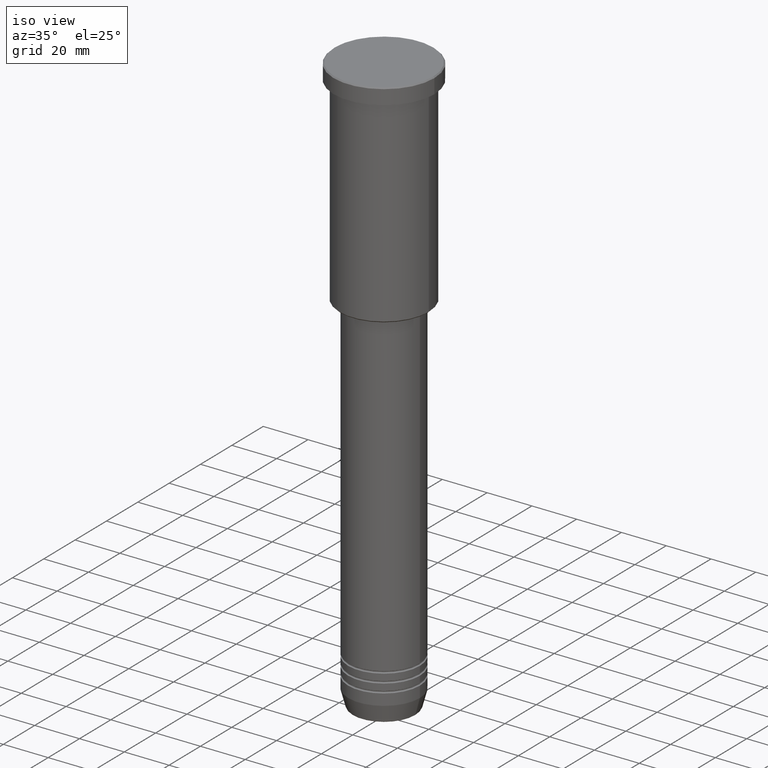
[diagram: clean part render]
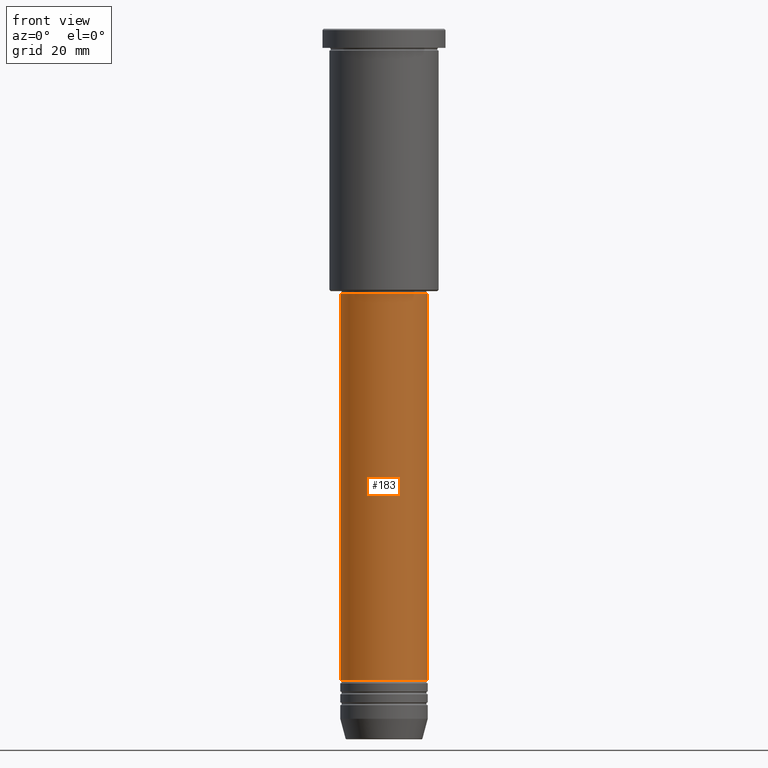
[diagram: tour spotlight — one face highlighted and labeled with its STEP entity id]
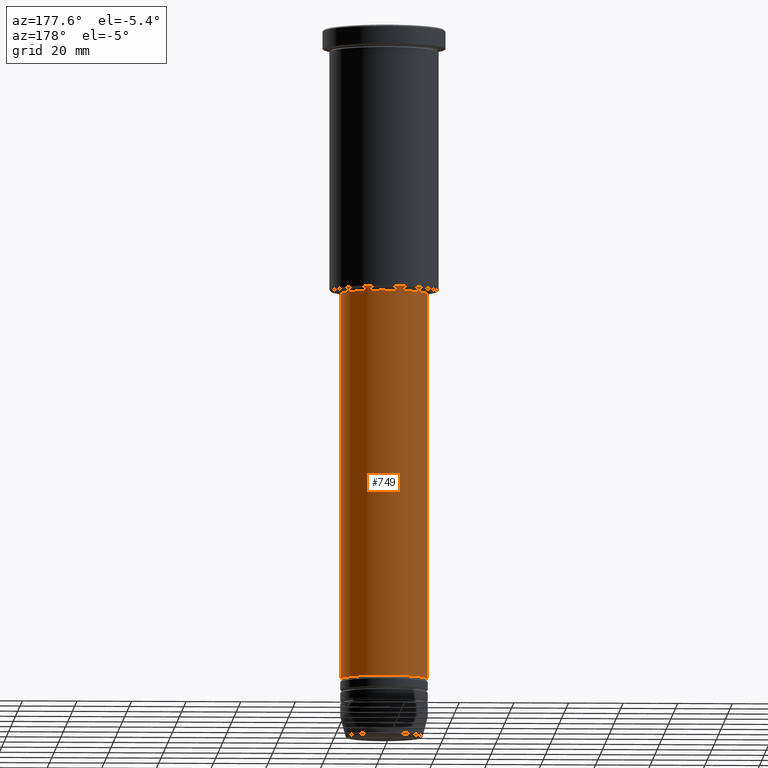
[diagram: tour spotlight — one face highlighted and labeled with its STEP entity id]
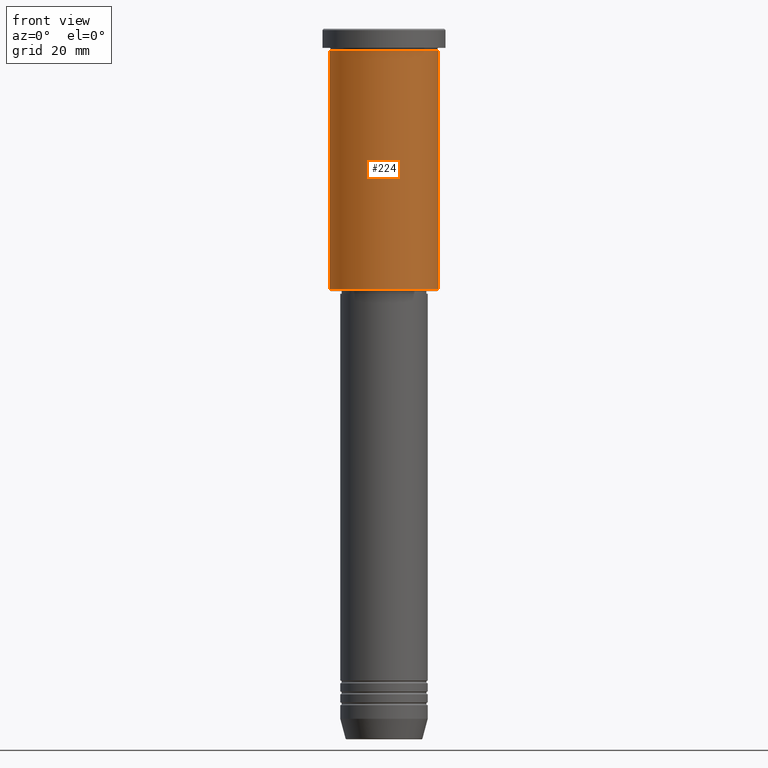
[diagram: tour spotlight — one face highlighted and labeled with its STEP entity id]
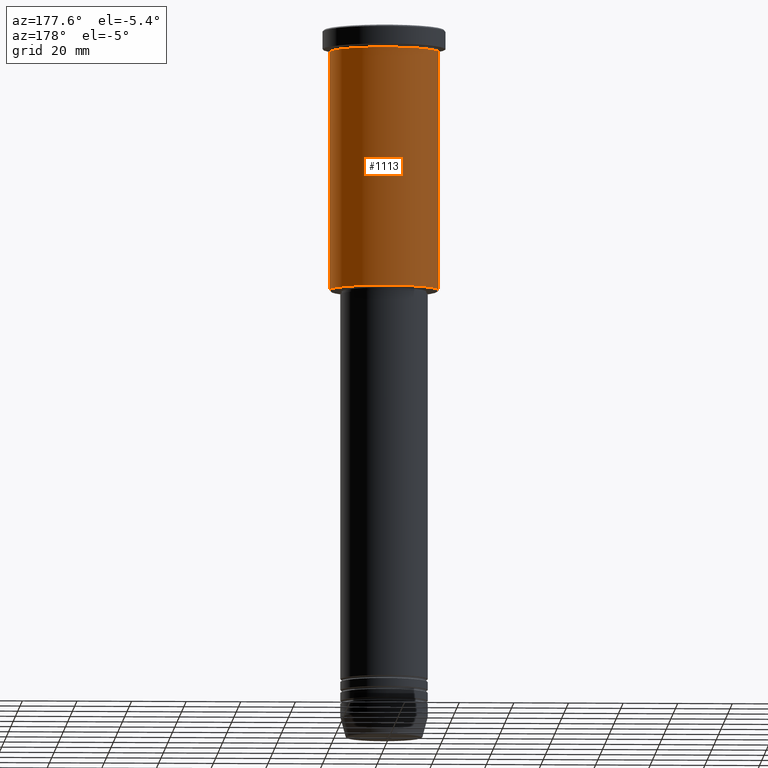
[diagram: tour spotlight — one face highlighted and labeled with its STEP entity id]
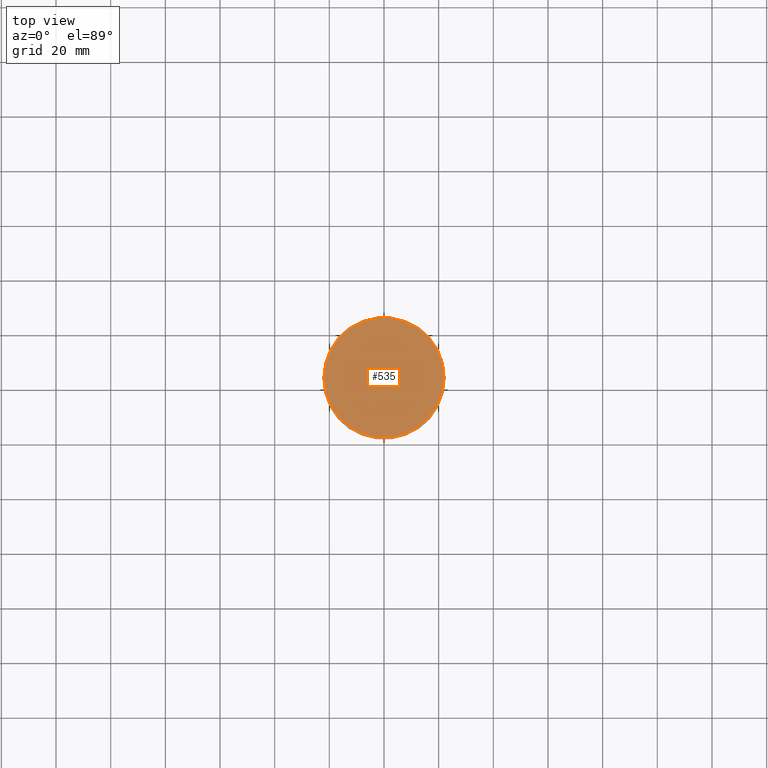
[diagram: tour spotlight — one face highlighted and labeled with its STEP entity id]
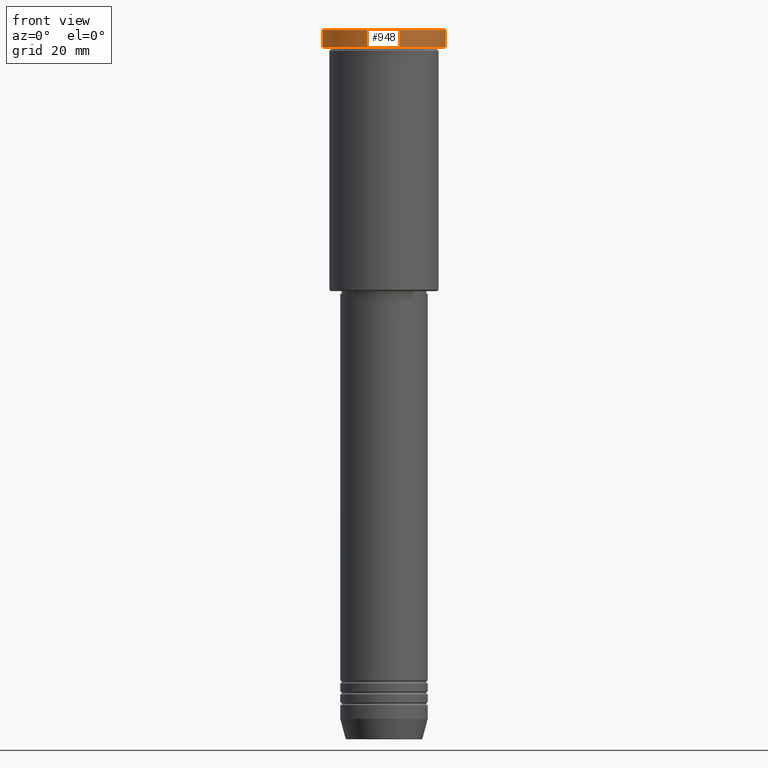
[diagram: tour spotlight — one face highlighted and labeled with its STEP entity id]
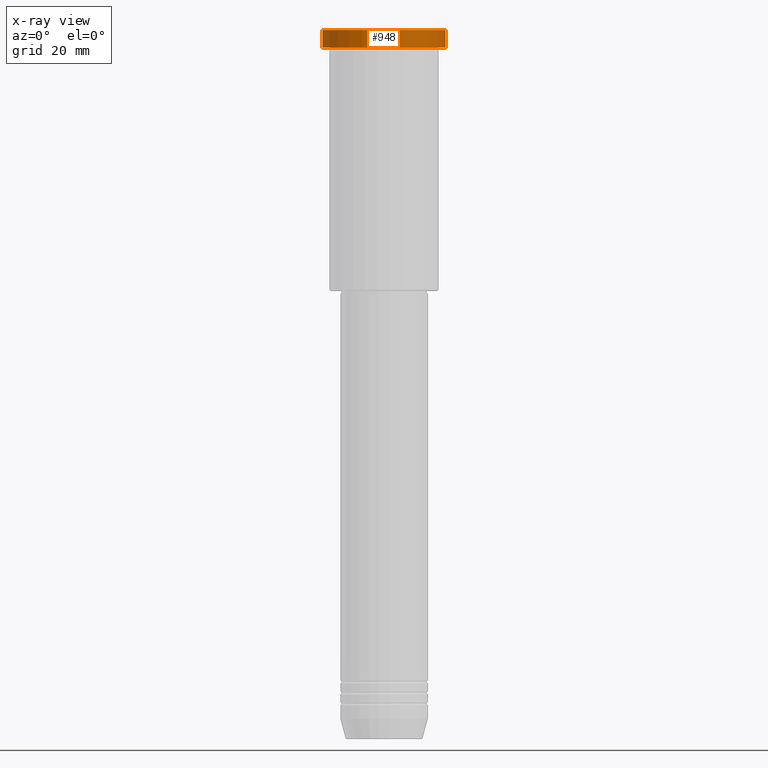
[diagram: x-ray of the same camera — body ghosted, this tour face saturated]
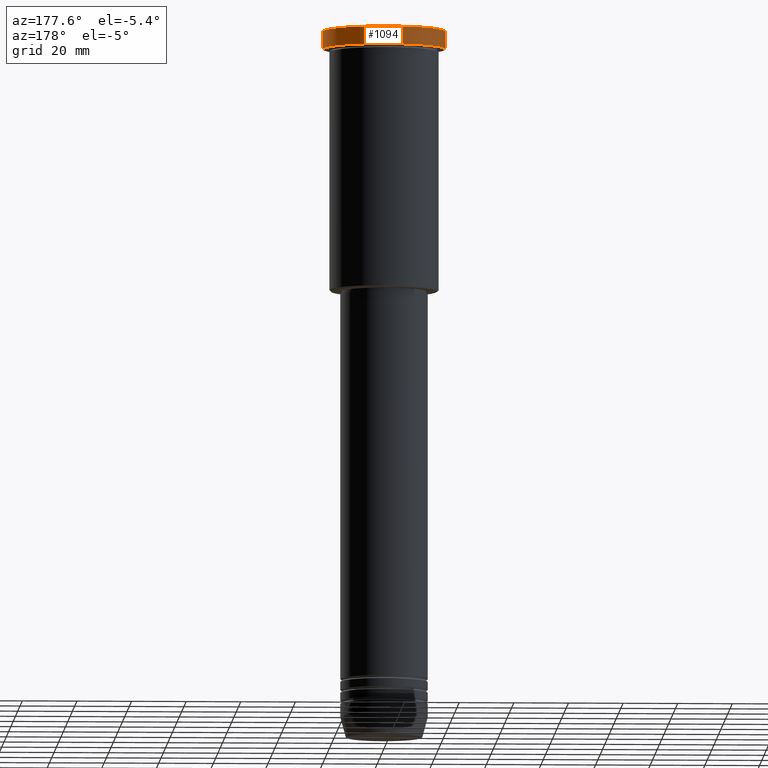
[diagram: tour spotlight — one face highlighted and labeled with its STEP entity id]
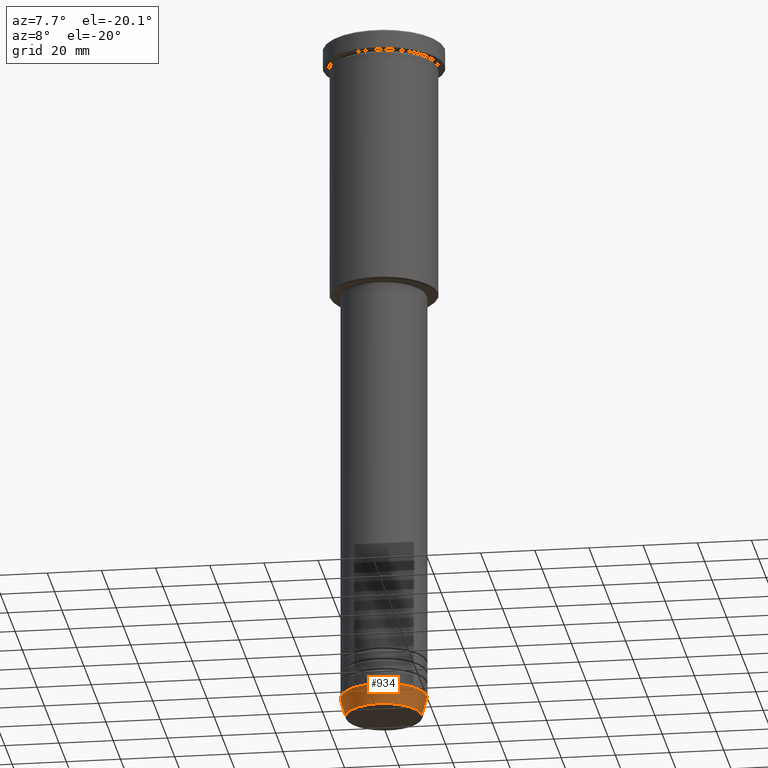
[diagram: tour spotlight — one face highlighted and labeled with its STEP entity id]
A machine part: a face-by-face anatomy tour. The part has 43 B-rep faces; the first image is the clean iso view, then the 8 largest visible faces are spotlighted one at a time (largest first), each with its STEP entity span.

Face 1 — front view, entity #183. In plain terms, the highlighted cylindrical surface (partial cylindrical patch) has radius 16 mm, axis along (-0, -0, 1).
Definition (entity closure, byte-faithful):
#34 = CIRCLE ( 'NONE', #54, 16.00000000000000000 ) ;
#54 = AXIS2_PLACEMENT_3D ( 'NONE', #1133, #297, #681 ) ;
#127 = CIRCLE ( 'NONE', #805, 16.00000000000000000 ) ;
#167 = FACE_OUTER_BOUND ( 'NONE', #808, .T. ) ;
#183 = ADVANCED_FACE ( 'NONE', ( #167 ), #740, .T. ) ;
#206 = DIRECTION ( 'NONE',  ( -0.000000000000000000, -0.000000000000000000, 1.000000000000000000 ) ) ;
#209 = ORIENTED_EDGE ( 'NONE', *, *, #967, .T. ) ;
#217 = CARTESIAN_POINT ( 'NONE',  ( 16.00000000000000000, 0.000000000000000000, -238.5000000000000000 ) ) ;
#297 = DIRECTION ( 'NONE',  ( -0.000000000000000000, -0.000000000000000000, 1.000000000000000000 ) ) ;
#319 = EDGE_CURVE ( 'NONE', #377, #721, #679, .T. ) ;
#354 = DIRECTION ( 'NONE',  ( 1.000000000000000000, 0.000000000000000000, 0.000000000000000000 ) ) ;
#377 = VERTEX_POINT ( 'NONE', #700 ) ;
#395 = ORIENTED_EDGE ( 'NONE', *, *, #1019, .F. ) ;
#488 = VECTOR ( 'NONE', #1018, 1000.000000000000000 ) ;
#538 = VERTEX_POINT ( 'NONE', #1117 ) ;
#539 = CARTESIAN_POINT ( 'NONE',  ( -16.00000000000000000, 1.959434878635765131E-15, -97.00000000000002842 ) ) ;
#549 = AXIS2_PLACEMENT_3D ( 'NONE', #1179, #1106, #354 ) ;
#606 = VERTEX_POINT ( 'NONE', #217 ) ;
#610 = ORIENTED_EDGE ( 'NONE', *, *, #319, .F. ) ;
#679 = LINE ( 'NONE', #1039, #724 ) ;
#681 = DIRECTION ( 'NONE',  ( 1.000000000000000000, 0.000000000000000000, 0.000000000000000000 ) ) ;
#684 = ORIENTED_EDGE ( 'NONE', *, *, #1174, .T. ) ;
#700 = CARTESIAN_POINT ( 'NONE',  ( -16.00000000000000000, 1.959434878635765131E-15, -238.5000000000000000 ) ) ;
#717 = CARTESIAN_POINT ( 'NONE',  ( 0.000000000000000000, 0.000000000000000000, -97.00000000000002842 ) ) ;
#721 = VERTEX_POINT ( 'NONE', #539 ) ;
#724 = VECTOR ( 'NONE', #206, 1000.000000000000000 ) ;
#740 = CYLINDRICAL_SURFACE ( 'NONE', #549, 16.00000000000000000 ) ;
#805 = AXIS2_PLACEMENT_3D ( 'NONE', #717, #807, #1069 ) ;
#807 = DIRECTION ( 'NONE',  ( -0.000000000000000000, -0.000000000000000000, 1.000000000000000000 ) ) ;
#808 = EDGE_LOOP ( 'NONE', ( #610, #209, #684, #395 ) ) ;
#815 = LINE ( 'NONE', #994, #488 ) ;
#967 = EDGE_CURVE ( 'NONE', #377, #606, #34, .T. ) ;
#994 = CARTESIAN_POINT ( 'NONE',  ( 16.00000000000000000, 0.000000000000000000, 0.000000000000000000 ) ) ;
#1018 = DIRECTION ( 'NONE',  ( -0.000000000000000000, -0.000000000000000000, 1.000000000000000000 ) ) ;
#1019 = EDGE_CURVE ( 'NONE', #721, #538, #127, .T. ) ;
#1039 = CARTESIAN_POINT ( 'NONE',  ( -16.00000000000000000, 1.959434878635765131E-15, 0.000000000000000000 ) ) ;
#1069 = DIRECTION ( 'NONE',  ( 1.000000000000000000, 0.000000000000000000, 0.000000000000000000 ) ) ;
#1106 = DIRECTION ( 'NONE',  ( -0.000000000000000000, -0.000000000000000000, 1.000000000000000000 ) ) ;
#1117 = CARTESIAN_POINT ( 'NONE',  ( 16.00000000000000000, 0.000000000000000000, -97.00000000000002842 ) ) ;
#1133 = CARTESIAN_POINT ( 'NONE',  ( 0.000000000000000000, 0.000000000000000000, -238.5000000000000000 ) ) ;
#1174 = EDGE_CURVE ( 'NONE', #606, #538, #815, .T. ) ;
#1179 = CARTESIAN_POINT ( 'NONE',  ( 0.000000000000000000, 0.000000000000000000, 0.000000000000000000 ) ) ;

Face 2 — auxiliary view, entity #749. In plain terms, the highlighted cylindrical surface (partial cylindrical patch) has radius 16 mm, axis along (-0, -0, 1).
Definition (entity closure, byte-faithful):
#20 = ORIENTED_EDGE ( 'NONE', *, *, #319, .T. ) ;
#112 = EDGE_CURVE ( 'NONE', #538, #721, #344, .T. ) ;
#174 = EDGE_LOOP ( 'NONE', ( #954, #20, #1035, #903 ) ) ;
#206 = DIRECTION ( 'NONE',  ( -0.000000000000000000, -0.000000000000000000, 1.000000000000000000 ) ) ;
#217 = CARTESIAN_POINT ( 'NONE',  ( 16.00000000000000000, 0.000000000000000000, -238.5000000000000000 ) ) ;
#270 = CYLINDRICAL_SURFACE ( 'NONE', #347, 16.00000000000000000 ) ;
#319 = EDGE_CURVE ( 'NONE', #377, #721, #679, .T. ) ;
#321 = DIRECTION ( 'NONE',  ( -0.000000000000000000, -0.000000000000000000, 1.000000000000000000 ) ) ;
#344 = CIRCLE ( 'NONE', #381, 16.00000000000000000 ) ;
#346 = DIRECTION ( 'NONE',  ( 1.000000000000000000, 0.000000000000000000, 0.000000000000000000 ) ) ;
#347 = AXIS2_PLACEMENT_3D ( 'NONE', #546, #1115, #346 ) ;
#356 = EDGE_CURVE ( 'NONE', #606, #377, #463, .T. ) ;
#377 = VERTEX_POINT ( 'NONE', #700 ) ;
#381 = AXIS2_PLACEMENT_3D ( 'NONE', #505, #409, #1079 ) ;
#396 = DIRECTION ( 'NONE',  ( 1.000000000000000000, 0.000000000000000000, 0.000000000000000000 ) ) ;
#409 = DIRECTION ( 'NONE',  ( -0.000000000000000000, -0.000000000000000000, 1.000000000000000000 ) ) ;
#463 = CIRCLE ( 'NONE', #893, 16.00000000000000000 ) ;
#488 = VECTOR ( 'NONE', #1018, 1000.000000000000000 ) ;
#505 = CARTESIAN_POINT ( 'NONE',  ( 0.000000000000000000, 0.000000000000000000, -97.00000000000002842 ) ) ;
#538 = VERTEX_POINT ( 'NONE', #1117 ) ;
#539 = CARTESIAN_POINT ( 'NONE',  ( -16.00000000000000000, 1.959434878635765131E-15, -97.00000000000002842 ) ) ;
#546 = CARTESIAN_POINT ( 'NONE',  ( 0.000000000000000000, 0.000000000000000000, 0.000000000000000000 ) ) ;
#606 = VERTEX_POINT ( 'NONE', #217 ) ;
#679 = LINE ( 'NONE', #1039, #724 ) ;
#700 = CARTESIAN_POINT ( 'NONE',  ( -16.00000000000000000, 1.959434878635765131E-15, -238.5000000000000000 ) ) ;
#721 = VERTEX_POINT ( 'NONE', #539 ) ;
#724 = VECTOR ( 'NONE', #206, 1000.000000000000000 ) ;
#749 = ADVANCED_FACE ( 'NONE', ( #1183 ), #270, .T. ) ;
#815 = LINE ( 'NONE', #994, #488 ) ;
#818 = CARTESIAN_POINT ( 'NONE',  ( 0.000000000000000000, 0.000000000000000000, -238.5000000000000000 ) ) ;
#893 = AXIS2_PLACEMENT_3D ( 'NONE', #818, #321, #396 ) ;
#903 = ORIENTED_EDGE ( 'NONE', *, *, #1174, .F. ) ;
#954 = ORIENTED_EDGE ( 'NONE', *, *, #356, .T. ) ;
#994 = CARTESIAN_POINT ( 'NONE',  ( 16.00000000000000000, 0.000000000000000000, 0.000000000000000000 ) ) ;
#1018 = DIRECTION ( 'NONE',  ( -0.000000000000000000, -0.000000000000000000, 1.000000000000000000 ) ) ;
#1035 = ORIENTED_EDGE ( 'NONE', *, *, #112, .F. ) ;
#1039 = CARTESIAN_POINT ( 'NONE',  ( -16.00000000000000000, 1.959434878635765131E-15, 0.000000000000000000 ) ) ;
#1079 = DIRECTION ( 'NONE',  ( 1.000000000000000000, 0.000000000000000000, 0.000000000000000000 ) ) ;
#1115 = DIRECTION ( 'NONE',  ( -0.000000000000000000, -0.000000000000000000, 1.000000000000000000 ) ) ;
#1117 = CARTESIAN_POINT ( 'NONE',  ( 16.00000000000000000, 0.000000000000000000, -97.00000000000002842 ) ) ;
#1174 = EDGE_CURVE ( 'NONE', #606, #538, #815, .T. ) ;
#1183 = FACE_OUTER_BOUND ( 'NONE', #174, .T. ) ;

Face 3 — front view, entity #224. In plain terms, the highlighted cylindrical surface (partial cylindrical patch) has radius 20 mm, axis along (-0, -0, 1).
Definition (entity closure, byte-faithful):
#42 = DIRECTION ( 'NONE',  ( -0.000000000000000000, -0.000000000000000000, 1.000000000000000000 ) ) ;
#114 = VERTEX_POINT ( 'NONE', #798 ) ;
#118 = ORIENTED_EDGE ( 'NONE', *, *, #919, .F. ) ;
#155 = CARTESIAN_POINT ( 'NONE',  ( 0.000000000000000000, 0.000000000000000000, -7.999999999999994671 ) ) ;
#164 = CIRCLE ( 'NONE', #349, 20.00000000000000355 ) ;
#224 = ADVANCED_FACE ( 'NONE', ( #899 ), #1096, .T. ) ;
#244 = DIRECTION ( 'NONE',  ( 1.000000000000000000, 0.000000000000000000, 0.000000000000000000 ) ) ;
#249 = VERTEX_POINT ( 'NONE', #378 ) ;
#304 = LINE ( 'NONE', #311, #1073 ) ;
#311 = CARTESIAN_POINT ( 'NONE',  ( -20.00000000000000355, 2.449293598294706907E-15, 0.000000000000000000 ) ) ;
#349 = AXIS2_PLACEMENT_3D ( 'NONE', #1119, #478, #870 ) ;
#378 = CARTESIAN_POINT ( 'NONE',  ( -20.00000000000000355, 2.449293598294706907E-15, -95.49999999999997158 ) ) ;
#411 = CIRCLE ( 'NONE', #975, 20.00000000000000000 ) ;
#417 = EDGE_CURVE ( 'NONE', #114, #834, #641, .T. ) ;
#426 = AXIS2_PLACEMENT_3D ( 'NONE', #657, #550, #452 ) ;
#452 = DIRECTION ( 'NONE',  ( 1.000000000000000000, 0.000000000000000000, 0.000000000000000000 ) ) ;
#465 = CARTESIAN_POINT ( 'NONE',  ( 20.00000000000000000, 0.000000000000000000, -7.999999999999994671 ) ) ;
#478 = DIRECTION ( 'NONE',  ( -0.000000000000000000, -0.000000000000000000, 1.000000000000000000 ) ) ;
#507 = ORIENTED_EDGE ( 'NONE', *, *, #417, .T. ) ;
#550 = DIRECTION ( 'NONE',  ( -0.000000000000000000, -0.000000000000000000, 1.000000000000000000 ) ) ;
#615 = DIRECTION ( 'NONE',  ( -0.000000000000000000, -0.000000000000000000, 1.000000000000000000 ) ) ;
#631 = CARTESIAN_POINT ( 'NONE',  ( -20.00000000000000000, 2.449293598294706513E-15, -7.999999999999994671 ) ) ;
#641 = LINE ( 'NONE', #1060, #751 ) ;
#657 = CARTESIAN_POINT ( 'NONE',  ( 0.000000000000000000, 0.000000000000000000, 0.000000000000000000 ) ) ;
#696 = DIRECTION ( 'NONE',  ( -0.000000000000000000, -0.000000000000000000, 1.000000000000000000 ) ) ;
#751 = VECTOR ( 'NONE', #42, 1000.000000000000000 ) ;
#798 = CARTESIAN_POINT ( 'NONE',  ( 20.00000000000000355, 0.000000000000000000, -95.49999999999997158 ) ) ;
#834 = VERTEX_POINT ( 'NONE', #465 ) ;
#870 = DIRECTION ( 'NONE',  ( -1.000000000000000000, 0.000000000000000000, 0.000000000000000000 ) ) ;
#899 = FACE_OUTER_BOUND ( 'NONE', #1164, .T. ) ;
#902 = EDGE_CURVE ( 'NONE', #249, #114, #164, .T. ) ;
#919 = EDGE_CURVE ( 'NONE', #249, #1023, #304, .T. ) ;
#975 = AXIS2_PLACEMENT_3D ( 'NONE', #155, #615, #244 ) ;
#998 = EDGE_CURVE ( 'NONE', #1023, #834, #411, .T. ) ;
#1023 = VERTEX_POINT ( 'NONE', #631 ) ;
#1060 = CARTESIAN_POINT ( 'NONE',  ( 20.00000000000000355, 0.000000000000000000, 0.000000000000000000 ) ) ;
#1073 = VECTOR ( 'NONE', #696, 1000.000000000000000 ) ;
#1087 = ORIENTED_EDGE ( 'NONE', *, *, #902, .T. ) ;
#1096 = CYLINDRICAL_SURFACE ( 'NONE', #426, 20.00000000000000355 ) ;
#1119 = CARTESIAN_POINT ( 'NONE',  ( 0.000000000000000000, 0.000000000000000000, -95.49999999999997158 ) ) ;
#1120 = ORIENTED_EDGE ( 'NONE', *, *, #998, .F. ) ;
#1164 = EDGE_LOOP ( 'NONE', ( #118, #1087, #507, #1120 ) ) ;

Face 4 — auxiliary view, entity #1113. In plain terms, the highlighted cylindrical surface (partial cylindrical patch) has radius 20 mm, axis along (-0, -0, 1).
Definition (entity closure, byte-faithful):
#42 = DIRECTION ( 'NONE',  ( -0.000000000000000000, -0.000000000000000000, 1.000000000000000000 ) ) ;
#59 = CIRCLE ( 'NONE', #182, 20.00000000000000355 ) ;
#66 = DIRECTION ( 'NONE',  ( 1.000000000000000000, 0.000000000000000000, 0.000000000000000000 ) ) ;
#114 = VERTEX_POINT ( 'NONE', #798 ) ;
#129 = DIRECTION ( 'NONE',  ( -1.000000000000000000, 0.000000000000000000, 0.000000000000000000 ) ) ;
#149 = EDGE_CURVE ( 'NONE', #834, #1023, #802, .T. ) ;
#170 = ORIENTED_EDGE ( 'NONE', *, *, #149, .F. ) ;
#182 = AXIS2_PLACEMENT_3D ( 'NONE', #904, #405, #129 ) ;
#248 = CARTESIAN_POINT ( 'NONE',  ( 0.000000000000000000, 0.000000000000000000, 0.000000000000000000 ) ) ;
#249 = VERTEX_POINT ( 'NONE', #378 ) ;
#304 = LINE ( 'NONE', #311, #1073 ) ;
#311 = CARTESIAN_POINT ( 'NONE',  ( -20.00000000000000355, 2.449293598294706907E-15, 0.000000000000000000 ) ) ;
#318 = DIRECTION ( 'NONE',  ( 1.000000000000000000, 0.000000000000000000, 0.000000000000000000 ) ) ;
#360 = EDGE_LOOP ( 'NONE', ( #1063, #581, #170, #914 ) ) ;
#372 = EDGE_CURVE ( 'NONE', #114, #249, #59, .T. ) ;
#378 = CARTESIAN_POINT ( 'NONE',  ( -20.00000000000000355, 2.449293598294706907E-15, -95.49999999999997158 ) ) ;
#405 = DIRECTION ( 'NONE',  ( -0.000000000000000000, -0.000000000000000000, 1.000000000000000000 ) ) ;
#417 = EDGE_CURVE ( 'NONE', #114, #834, #641, .T. ) ;
#429 = CYLINDRICAL_SURFACE ( 'NONE', #637, 20.00000000000000355 ) ;
#465 = CARTESIAN_POINT ( 'NONE',  ( 20.00000000000000000, 0.000000000000000000, -7.999999999999994671 ) ) ;
#581 = ORIENTED_EDGE ( 'NONE', *, *, #919, .T. ) ;
#631 = CARTESIAN_POINT ( 'NONE',  ( -20.00000000000000000, 2.449293598294706513E-15, -7.999999999999994671 ) ) ;
#637 = AXIS2_PLACEMENT_3D ( 'NONE', #248, #987, #318 ) ;
#641 = LINE ( 'NONE', #1060, #751 ) ;
#696 = DIRECTION ( 'NONE',  ( -0.000000000000000000, -0.000000000000000000, 1.000000000000000000 ) ) ;
#711 = CARTESIAN_POINT ( 'NONE',  ( 0.000000000000000000, 0.000000000000000000, -7.999999999999994671 ) ) ;
#751 = VECTOR ( 'NONE', #42, 1000.000000000000000 ) ;
#798 = CARTESIAN_POINT ( 'NONE',  ( 20.00000000000000355, 0.000000000000000000, -95.49999999999997158 ) ) ;
#802 = CIRCLE ( 'NONE', #910, 20.00000000000000000 ) ;
#834 = VERTEX_POINT ( 'NONE', #465 ) ;
#892 = FACE_OUTER_BOUND ( 'NONE', #360, .T. ) ;
#904 = CARTESIAN_POINT ( 'NONE',  ( 0.000000000000000000, 0.000000000000000000, -95.49999999999997158 ) ) ;
#910 = AXIS2_PLACEMENT_3D ( 'NONE', #711, #1074, #66 ) ;
#914 = ORIENTED_EDGE ( 'NONE', *, *, #417, .F. ) ;
#919 = EDGE_CURVE ( 'NONE', #249, #1023, #304, .T. ) ;
#987 = DIRECTION ( 'NONE',  ( -0.000000000000000000, -0.000000000000000000, 1.000000000000000000 ) ) ;
#1023 = VERTEX_POINT ( 'NONE', #631 ) ;
#1060 = CARTESIAN_POINT ( 'NONE',  ( 20.00000000000000355, 0.000000000000000000, 0.000000000000000000 ) ) ;
#1063 = ORIENTED_EDGE ( 'NONE', *, *, #372, .T. ) ;
#1073 = VECTOR ( 'NONE', #696, 1000.000000000000000 ) ;
#1074 = DIRECTION ( 'NONE',  ( -0.000000000000000000, -0.000000000000000000, 1.000000000000000000 ) ) ;
#1113 = ADVANCED_FACE ( 'NONE', ( #892 ), #429, .T. ) ;

Face 5 — top view, entity #535. In plain terms, the highlighted planar face has unit normal (0, -0, 1).
Definition (entity closure, byte-faithful):
#126 = DIRECTION ( 'NONE',  ( -0.000000000000000000, -0.000000000000000000, 1.000000000000000000 ) ) ;
#246 = VERTEX_POINT ( 'NONE', #922 ) ;
#292 = CIRCLE ( 'NONE', #842, 21.99999999999990763 ) ;
#353 = EDGE_CURVE ( 'NONE', #1059, #246, #529, .T. ) ;
#415 = DIRECTION ( 'NONE',  ( -0.000000000000000000, -0.000000000000000000, 1.000000000000000000 ) ) ;
#425 = ORIENTED_EDGE ( 'NONE', *, *, #881, .T. ) ;
#467 = PLANE ( 'NONE',  #896 ) ;
#529 = CIRCLE ( 'NONE', #738, 21.99999999999990763 ) ;
#535 = ADVANCED_FACE ( 'NONE', ( #566 ), #467, .T. ) ;
#541 = CARTESIAN_POINT ( 'NONE',  ( 0.000000000000000000, 0.000000000000000000, 0.000000000000000000 ) ) ;
#566 = FACE_OUTER_BOUND ( 'NONE', #1102, .T. ) ;
#738 = AXIS2_PLACEMENT_3D ( 'NONE', #541, #415, #961 ) ;
#754 = DIRECTION ( 'NONE',  ( 0.000000000000000000, -0.000000000000000000, 1.000000000000000000 ) ) ;
#813 = ORIENTED_EDGE ( 'NONE', *, *, #353, .T. ) ;
#842 = AXIS2_PLACEMENT_3D ( 'NONE', #1140, #126, #928 ) ;
#843 = DIRECTION ( 'NONE',  ( 1.000000000000000000, 0.000000000000000000, 0.000000000000000000 ) ) ;
#881 = EDGE_CURVE ( 'NONE', #246, #1059, #292, .T. ) ;
#896 = AXIS2_PLACEMENT_3D ( 'NONE', #1010, #754, #843 ) ;
#922 = CARTESIAN_POINT ( 'NONE',  ( 21.99999999999990763, 2.724839128102855074E-15, 0.000000000000000000 ) ) ;
#928 = DIRECTION ( 'NONE',  ( 1.000000000000000000, 0.000000000000000000, 0.000000000000000000 ) ) ;
#961 = DIRECTION ( 'NONE',  ( 1.000000000000000000, 0.000000000000000000, 0.000000000000000000 ) ) ;
#971 = CARTESIAN_POINT ( 'NONE',  ( -21.99999999999990763, 0.000000000000000000, 0.000000000000000000 ) ) ;
#1010 = CARTESIAN_POINT ( 'NONE',  ( 0.000000000000000000, 0.000000000000000000, 0.000000000000000000 ) ) ;
#1059 = VERTEX_POINT ( 'NONE', #971 ) ;
#1102 = EDGE_LOOP ( 'NONE', ( #813, #425 ) ) ;
#1140 = CARTESIAN_POINT ( 'NONE',  ( 0.000000000000000000, 0.000000000000000000, 0.000000000000000000 ) ) ;

Face 6 — front view, entity #948. An x-ray twin of the same camera follows (body ghosted, this face saturated) — the face is partly hidden behind the body. In plain terms, the highlighted cylindrical surface (partial cylindrical patch) has radius 22.5 mm, axis along (-0, -0, 1).
Definition (entity closure, byte-faithful):
#10 = DIRECTION ( 'NONE',  ( -0.000000000000000000, -0.000000000000000000, 1.000000000000000000 ) ) ;
#23 = LINE ( 'NONE', #302, #652 ) ;
#50 = DIRECTION ( 'NONE',  ( 0.000000000000000000, 0.000000000000000000, -1.000000000000000000 ) ) ;
#53 = CARTESIAN_POINT ( 'NONE',  ( -22.50000000000000000, 2.755455298081544778E-15, -0.5000000000001045830 ) ) ;
#62 = CARTESIAN_POINT ( 'NONE',  ( 22.50000000000000000, 0.000000000000000000, -6.999999999999995559 ) ) ;
#63 = EDGE_CURVE ( 'NONE', #101, #674, #156, .T. ) ;
#75 = VERTEX_POINT ( 'NONE', #1054 ) ;
#101 = VERTEX_POINT ( 'NONE', #716 ) ;
#128 = CARTESIAN_POINT ( 'NONE',  ( 22.50000000000000000, 0.000000000000000000, 0.000000000000000000 ) ) ;
#153 = EDGE_CURVE ( 'NONE', #75, #1038, #530, .T. ) ;
#156 = CIRCLE ( 'NONE', #832, 22.50000000000000000 ) ;
#215 = CYLINDRICAL_SURFACE ( 'NONE', #1166, 22.50000000000000000 ) ;
#267 = EDGE_CURVE ( 'NONE', #75, #674, #23, .T. ) ;
#302 = CARTESIAN_POINT ( 'NONE',  ( -22.50000000000000000, 2.755455298081544778E-15, 0.000000000000000000 ) ) ;
#310 = CARTESIAN_POINT ( 'NONE',  ( 0.000000000000000000, 0.000000000000000000, -0.5000000000001045830 ) ) ;
#345 = ORIENTED_EDGE ( 'NONE', *, *, #267, .F. ) ;
#422 = DIRECTION ( 'NONE',  ( 1.000000000000000000, 0.000000000000000000, 0.000000000000000000 ) ) ;
#428 = CARTESIAN_POINT ( 'NONE',  ( 0.000000000000000000, 0.000000000000000000, -6.999999999999995559 ) ) ;
#530 = CIRCLE ( 'NONE', #1070, 22.50000000000000000 ) ;
#591 = EDGE_CURVE ( 'NONE', #1038, #101, #1126, .T. ) ;
#592 = EDGE_LOOP ( 'NONE', ( #345, #864, #713, #667 ) ) ;
#602 = DIRECTION ( 'NONE',  ( 1.000000000000000000, 0.000000000000000000, 0.000000000000000000 ) ) ;
#630 = DIRECTION ( 'NONE',  ( -0.000000000000000000, -0.000000000000000000, 1.000000000000000000 ) ) ;
#652 = VECTOR ( 'NONE', #10, 1000.000000000000000 ) ;
#667 = ORIENTED_EDGE ( 'NONE', *, *, #63, .T. ) ;
#674 = VERTEX_POINT ( 'NONE', #53 ) ;
#675 = DIRECTION ( 'NONE',  ( -0.000000000000000000, -0.000000000000000000, 1.000000000000000000 ) ) ;
#713 = ORIENTED_EDGE ( 'NONE', *, *, #591, .T. ) ;
#716 = CARTESIAN_POINT ( 'NONE',  ( 22.50000000000000000, 0.000000000000000000, -0.5000000000001045830 ) ) ;
#821 = VECTOR ( 'NONE', #959, 1000.000000000000000 ) ;
#832 = AXIS2_PLACEMENT_3D ( 'NONE', #310, #50, #422 ) ;
#854 = CARTESIAN_POINT ( 'NONE',  ( 0.000000000000000000, 0.000000000000000000, 0.000000000000000000 ) ) ;
#864 = ORIENTED_EDGE ( 'NONE', *, *, #153, .T. ) ;
#948 = ADVANCED_FACE ( 'NONE', ( #1048 ), #215, .T. ) ;
#959 = DIRECTION ( 'NONE',  ( -0.000000000000000000, -0.000000000000000000, 1.000000000000000000 ) ) ;
#986 = DIRECTION ( 'NONE',  ( 1.000000000000000000, 0.000000000000000000, 0.000000000000000000 ) ) ;
#1038 = VERTEX_POINT ( 'NONE', #62 ) ;
#1048 = FACE_OUTER_BOUND ( 'NONE', #592, .T. ) ;
#1054 = CARTESIAN_POINT ( 'NONE',  ( -22.50000000000000000, 2.755455298081544778E-15, -6.999999999999995559 ) ) ;
#1070 = AXIS2_PLACEMENT_3D ( 'NONE', #428, #630, #986 ) ;
#1126 = LINE ( 'NONE', #128, #821 ) ;
#1166 = AXIS2_PLACEMENT_3D ( 'NONE', #854, #675, #602 ) ;

Face 7 — auxiliary view, entity #1094. In plain terms, the highlighted cylindrical surface (partial cylindrical patch) has radius 22.5 mm, axis along (-0, -0, 1).
Definition (entity closure, byte-faithful):
#10 = DIRECTION ( 'NONE',  ( -0.000000000000000000, -0.000000000000000000, 1.000000000000000000 ) ) ;
#22 = ORIENTED_EDGE ( 'NONE', *, *, #267, .T. ) ;
#23 = LINE ( 'NONE', #302, #652 ) ;
#35 = EDGE_CURVE ( 'NONE', #674, #101, #649, .T. ) ;
#53 = CARTESIAN_POINT ( 'NONE',  ( -22.50000000000000000, 2.755455298081544778E-15, -0.5000000000001045830 ) ) ;
#62 = CARTESIAN_POINT ( 'NONE',  ( 22.50000000000000000, 0.000000000000000000, -6.999999999999995559 ) ) ;
#75 = VERTEX_POINT ( 'NONE', #1054 ) ;
#101 = VERTEX_POINT ( 'NONE', #716 ) ;
#128 = CARTESIAN_POINT ( 'NONE',  ( 22.50000000000000000, 0.000000000000000000, 0.000000000000000000 ) ) ;
#212 = CIRCLE ( 'NONE', #362, 22.50000000000000000 ) ;
#260 = CARTESIAN_POINT ( 'NONE',  ( 0.000000000000000000, 0.000000000000000000, -6.999999999999995559 ) ) ;
#267 = EDGE_CURVE ( 'NONE', #75, #674, #23, .T. ) ;
#302 = CARTESIAN_POINT ( 'NONE',  ( -22.50000000000000000, 2.755455298081544778E-15, 0.000000000000000000 ) ) ;
#362 = AXIS2_PLACEMENT_3D ( 'NONE', #260, #647, #1002 ) ;
#380 = EDGE_LOOP ( 'NONE', ( #587, #22, #464, #1071 ) ) ;
#423 = FACE_OUTER_BOUND ( 'NONE', #380, .T. ) ;
#464 = ORIENTED_EDGE ( 'NONE', *, *, #35, .T. ) ;
#526 = DIRECTION ( 'NONE',  ( 1.000000000000000000, 0.000000000000000000, 0.000000000000000000 ) ) ;
#534 = AXIS2_PLACEMENT_3D ( 'NONE', #609, #793, #526 ) ;
#587 = ORIENTED_EDGE ( 'NONE', *, *, #851, .T. ) ;
#591 = EDGE_CURVE ( 'NONE', #1038, #101, #1126, .T. ) ;
#609 = CARTESIAN_POINT ( 'NONE',  ( 0.000000000000000000, 0.000000000000000000, 0.000000000000000000 ) ) ;
#647 = DIRECTION ( 'NONE',  ( -0.000000000000000000, -0.000000000000000000, 1.000000000000000000 ) ) ;
#649 = CIRCLE ( 'NONE', #796, 22.50000000000000000 ) ;
#652 = VECTOR ( 'NONE', #10, 1000.000000000000000 ) ;
#674 = VERTEX_POINT ( 'NONE', #53 ) ;
#694 = CARTESIAN_POINT ( 'NONE',  ( 0.000000000000000000, 0.000000000000000000, -0.5000000000001045830 ) ) ;
#716 = CARTESIAN_POINT ( 'NONE',  ( 22.50000000000000000, 0.000000000000000000, -0.5000000000001045830 ) ) ;
#793 = DIRECTION ( 'NONE',  ( -0.000000000000000000, -0.000000000000000000, 1.000000000000000000 ) ) ;
#796 = AXIS2_PLACEMENT_3D ( 'NONE', #694, #1168, #978 ) ;
#799 = CYLINDRICAL_SURFACE ( 'NONE', #534, 22.50000000000000000 ) ;
#821 = VECTOR ( 'NONE', #959, 1000.000000000000000 ) ;
#851 = EDGE_CURVE ( 'NONE', #1038, #75, #212, .T. ) ;
#959 = DIRECTION ( 'NONE',  ( -0.000000000000000000, -0.000000000000000000, 1.000000000000000000 ) ) ;
#978 = DIRECTION ( 'NONE',  ( 1.000000000000000000, 0.000000000000000000, 0.000000000000000000 ) ) ;
#1002 = DIRECTION ( 'NONE',  ( 1.000000000000000000, 0.000000000000000000, 0.000000000000000000 ) ) ;
#1038 = VERTEX_POINT ( 'NONE', #62 ) ;
#1054 = CARTESIAN_POINT ( 'NONE',  ( -22.50000000000000000, 2.755455298081544778E-15, -6.999999999999995559 ) ) ;
#1071 = ORIENTED_EDGE ( 'NONE', *, *, #591, .F. ) ;
#1094 = ADVANCED_FACE ( 'NONE', ( #423 ), #799, .T. ) ;
#1126 = LINE ( 'NONE', #128, #821 ) ;
#1168 = DIRECTION ( 'NONE',  ( 0.000000000000000000, 0.000000000000000000, -1.000000000000000000 ) ) ;

Face 8 — auxiliary view, entity #934. In plain terms, the highlighted conical surface has half-angle 15 deg.
Definition (entity closure, byte-faithful):
#6 = LINE ( 'NONE', #91, #744 ) ;
#26 = DIRECTION ( 'NONE',  ( -0.000000000000000000, -0.000000000000000000, 1.000000000000000000 ) ) ;
#91 = CARTESIAN_POINT ( 'NONE',  ( 16.00000000000000000, 0.000000000000000000, -252.5000000000000000 ) ) ;
#108 = VERTEX_POINT ( 'NONE', #792 ) ;
#113 = DIRECTION ( 'NONE',  ( 1.000000000000000000, 0.000000000000000000, 0.000000000000000000 ) ) ;
#197 = FACE_OUTER_BOUND ( 'NONE', #703, .T. ) ;
#216 = CONICAL_SURFACE ( 'NONE', #745, 16.00000000000000000, 0.2617993877991500740 ) ;
#229 = CARTESIAN_POINT ( 'NONE',  ( 16.00000000000000000, 0.000000000000000000, -252.5000000000000000 ) ) ;
#253 = EDGE_CURVE ( 'NONE', #459, #420, #689, .T. ) ;
#268 = CARTESIAN_POINT ( 'NONE',  ( 0.000000000000000000, 0.000000000000000000, -259.6294095225512706 ) ) ;
#269 = VERTEX_POINT ( 'NONE', #391 ) ;
#275 = DIRECTION ( 'NONE',  ( -0.2588190451025213501, 3.169619151431772337E-17, 0.9659258262890680902 ) ) ;
#281 = DIRECTION ( 'NONE',  ( -0.000000000000000000, -0.000000000000000000, 1.000000000000000000 ) ) ;
#391 = CARTESIAN_POINT ( 'NONE',  ( 14.08968047592161632, 0.000000000000000000, -259.6294095225512706 ) ) ;
#420 = VERTEX_POINT ( 'NONE', #229 ) ;
#458 = DIRECTION ( 'NONE',  ( -0.000000000000000000, -0.000000000000000000, 1.000000000000000000 ) ) ;
#459 = VERTEX_POINT ( 'NONE', #461 ) ;
#461 = CARTESIAN_POINT ( 'NONE',  ( -16.00000000000000000, 1.959434878635765131E-15, -252.5000000000000000 ) ) ;
#483 = CARTESIAN_POINT ( 'NONE',  ( 0.000000000000000000, 0.000000000000000000, -252.5000000000000000 ) ) ;
#554 = AXIS2_PLACEMENT_3D ( 'NONE', #268, #458, #833 ) ;
#578 = VECTOR ( 'NONE', #275, 1000.000000000000000 ) ;
#689 = CIRCLE ( 'NONE', #1163, 16.00000000000000000 ) ;
#703 = EDGE_LOOP ( 'NONE', ( #873, #718, #1176, #946 ) ) ;
#718 = ORIENTED_EDGE ( 'NONE', *, *, #1172, .T. ) ;
#741 = CARTESIAN_POINT ( 'NONE',  ( -16.00000000000000000, 1.959434878635765131E-15, -252.5000000000000000 ) ) ;
#743 = DIRECTION ( 'NONE',  ( 0.2588190451025213501, 0.000000000000000000, 0.9659258262890680902 ) ) ;
#744 = VECTOR ( 'NONE', #743, 1000.000000000000000 ) ;
#745 = AXIS2_PLACEMENT_3D ( 'NONE', #483, #26, #771 ) ;
#766 = CIRCLE ( 'NONE', #554, 14.08968047592161632 ) ;
#771 = DIRECTION ( 'NONE',  ( 1.000000000000000000, 0.000000000000000000, 0.000000000000000000 ) ) ;
#792 = CARTESIAN_POINT ( 'NONE',  ( -14.08968047592161632, 1.842461544110200874E-15, -259.6294095225512706 ) ) ;
#794 = EDGE_CURVE ( 'NONE', #269, #420, #6, .T. ) ;
#833 = DIRECTION ( 'NONE',  ( 1.000000000000000000, 0.000000000000000000, 0.000000000000000000 ) ) ;
#873 = ORIENTED_EDGE ( 'NONE', *, *, #1181, .F. ) ;
#934 = ADVANCED_FACE ( 'NONE', ( #197 ), #216, .T. ) ;
#935 = CARTESIAN_POINT ( 'NONE',  ( 0.000000000000000000, 0.000000000000000000, -252.5000000000000000 ) ) ;
#946 = ORIENTED_EDGE ( 'NONE', *, *, #253, .F. ) ;
#1107 = LINE ( 'NONE', #741, #578 ) ;
#1163 = AXIS2_PLACEMENT_3D ( 'NONE', #935, #281, #113 ) ;
#1172 = EDGE_CURVE ( 'NONE', #108, #269, #766, .T. ) ;
#1176 = ORIENTED_EDGE ( 'NONE', *, *, #794, .T. ) ;
#1181 = EDGE_CURVE ( 'NONE', #108, #459, #1107, .T. ) ;